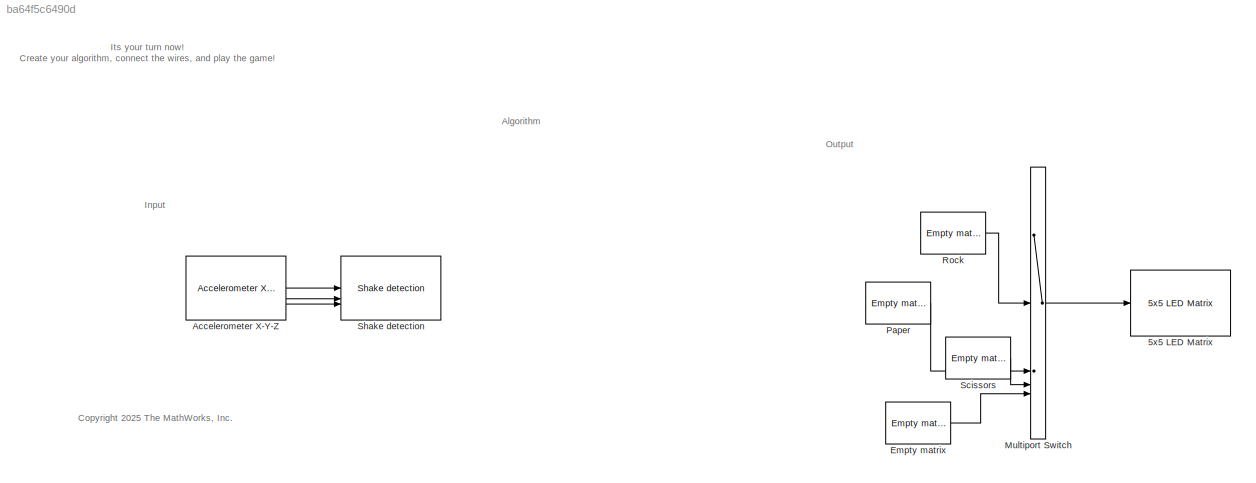
MODEL slx_ba64f5c6490d
KIND model
CONFIG AbsTol = auto
CONFIG EnableMultiTasking = off
CONFIG FixedStep = auto
CONFIG MaxStep = auto
CONFIG MinStep = auto
CONFIG RelTol = 1e-3
CONFIG SampleTimeConstraint = Unconstrained
CONFIG SolverName = FixedStepAuto
CONFIG StartTime = 0.0
CONFIG StopTime = inf
BLOCK [Reference] 5x5 LED Matrix  REF=microbitledlib/5x5 LED Matrix
  SourceBlock = microbitledlib/5x5 LED Matrix
  SourceType = BBC micro:bit 5x5 LED Matrix
BLOCK [Reference] Accelerometer X-Y-Z  REF=microbitaccellib/Accelerometer X-Y-Z
  SourceBlock = microbitaccellib/Accelerometer X-Y-Z
  SourceType = BBC micro:bit Accelerometer X-Y-Z
BLOCK [Reference] Empty matrix  REF=microbitledlib/LED Images/Empty matrix
  SourceBlock = microbitledlib/LED Images/Empty matrix
  SourceType = Output a 5x5 Matrix
BLOCK [MultiPortSwitch] Multiport Switch
  InputSameDT = off
  Inputs = 4
  SaturateOnIntegerOverflow = off
BLOCK [Reference] Paper  REF=microbitledlib/LED Images/Empty matrix
  SourceBlock = microbitledlib/LED Images/Empty matrix
  SourceType = Output a 5x5 Matrix
BLOCK [Reference] Rock  REF=microbitledlib/LED Images/Empty matrix
  SourceBlock = microbitledlib/LED Images/Empty matrix
  SourceType = Output a 5x5 Matrix
BLOCK [Reference] Scissors  REF=microbitledlib/LED Images/Empty matrix
  SourceBlock = microbitledlib/LED Images/Empty matrix
  SourceType = Output a 5x5 Matrix
BLOCK [Reference] Shake detection  REF=microbitaccellib/Shake detection
  SourceBlock = microbitaccellib/Shake detection
  SourceType = BBC micro:bit Accelerometer Shake detection
ANNOTATION (root): Its your turn now! Create your algorithm, connect the wires, and play the game!
ANNOTATION (root): <copyright redacted>
ANNOTATION (root): Algorithm
ANNOTATION (root): Input
ANNOTATION (root): Output
LINE Accelerometer X-Y-Z:1 -> Shake detection:1
LINE Accelerometer X-Y-Z:2 -> Shake detection:2
LINE Accelerometer X-Y-Z:3 -> Shake detection:3
LINE Empty matrix:1 -> Multiport Switch:5
LINE Multiport Switch:1 -> 5x5 LED Matrix:1
LINE Paper:1 -> Multiport Switch:3
LINE Rock:1 -> Multiport Switch:2
LINE Scissors:1 -> Multiport Switch:4
